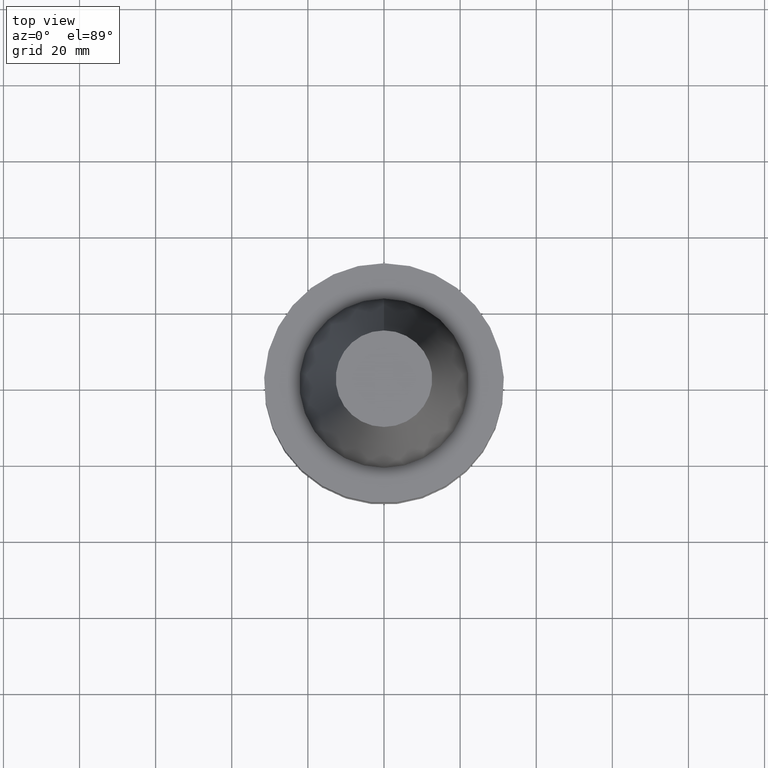
[diagram: clean part render]
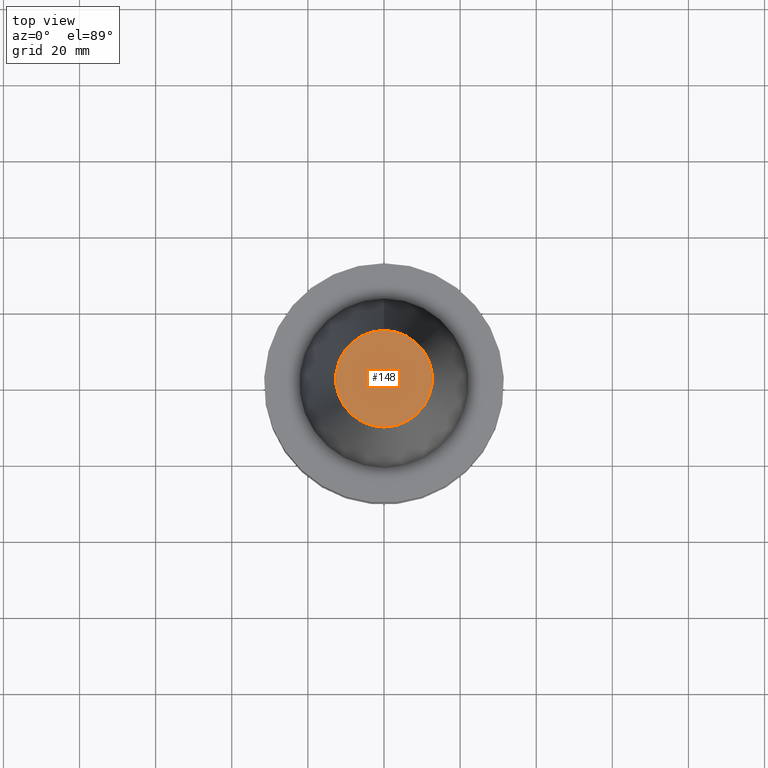
[diagram: same view with one face highlighted and labeled with its STEP entity id]
A machine part, top view. The second image highlights one B-rep face of the part: STEP entity #148.
In plain terms, the highlighted planar face has unit normal (-0, 0, 1).
Its self-contained STEP definition (entity closure, byte-faithful):
#94=EDGE_CURVE('Unnamed[1]',#231,#231,#232,.T.);
#148=ADVANCED_FACE('Unnamed[1]',(#313),#314,.T.);
#231=VERTEX_POINT('',#414);
#232=CIRCLE('',#415,12.6875000000001);
#313=FACE_OUTER_BOUND('',#516,.T.);
#314=PLANE('',#517);
#414=CARTESIAN_POINT('',(-4.00459503321185E-015,12.6875000000002,65.4000000000001));
#415=AXIS2_PLACEMENT_3D('',#615,#616,#617);
#516=EDGE_LOOP('',(#705));
#517=AXIS2_PLACEMENT_3D('',#706,#707,#708);
#615=CARTESIAN_POINT('',(-4.00459503321185E-015,7.70370916920507E-014,65.4000000000001));
#616=DIRECTION('',(6.12323399573677E-017,-1.31253561610837E-016,-1.0));
#617=DIRECTION('',(3.20980997439916E-033,1.0,-1.31253561610837E-016));
#705=ORIENTED_EDGE('',*,*,#94,.F.);
#706=CARTESIAN_POINT('',(-4.00459503321185E-015,6.34375000000014,65.4000000000001));
#707=DIRECTION('',(-6.12323399573677E-017,9.97602686800683E-016,1.0));
#708=DIRECTION('',(-5.62583941297938E-032,-1.0,9.97602686800683E-016));